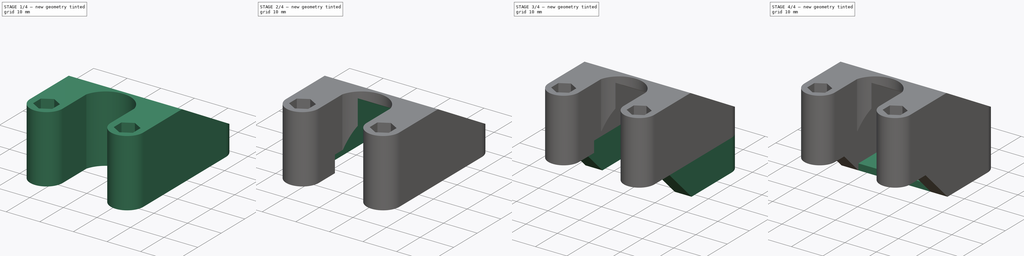
[diagram: build sequence overview — one tinted view per stage of 4, left to right]
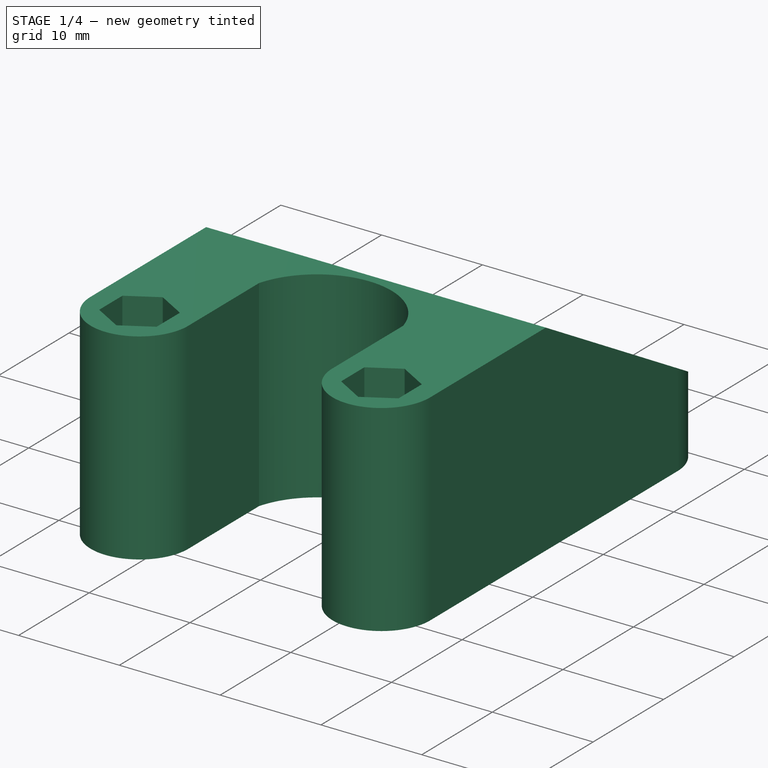
[diagram: stage 1 of 4 — iso view after this stage's code; geometry added in this stage tinted green]
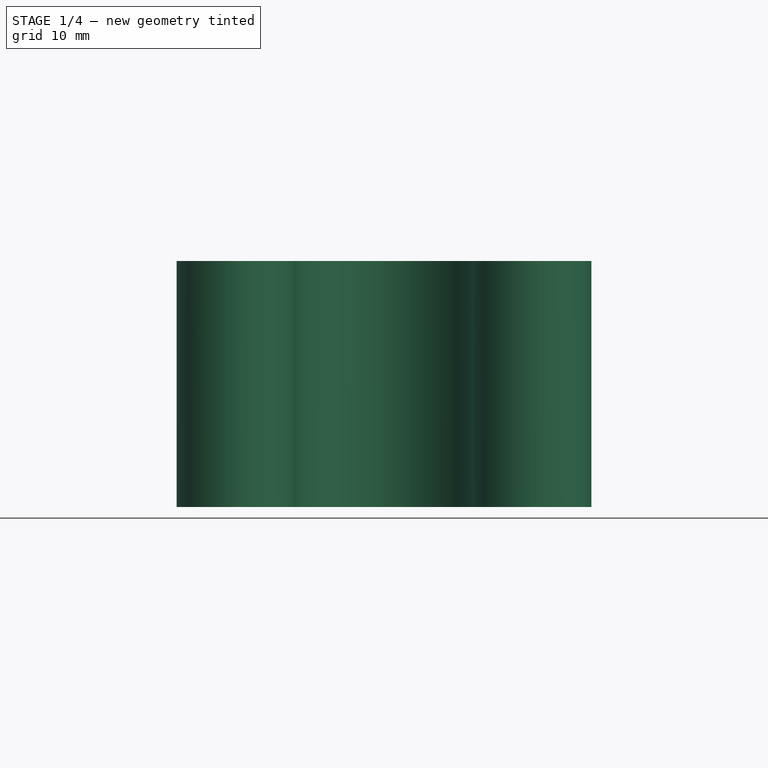
[diagram: stage 1 of 4 — front view after this stage's code; geometry added in this stage tinted green]
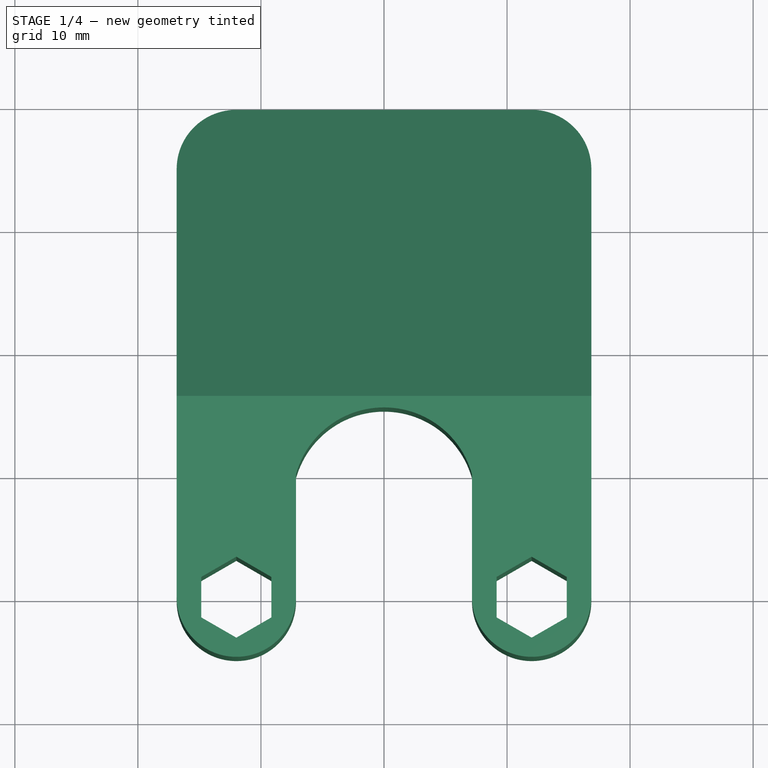
[diagram: stage 1 of 4 — top view after this stage's code; geometry added in this stage tinted green]
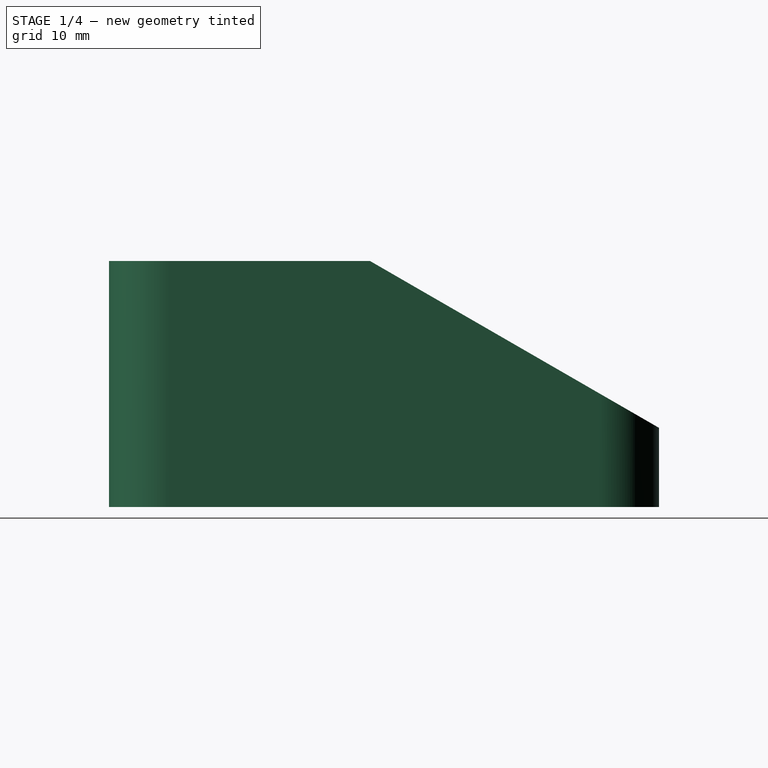
[diagram: stage 1 of 4 — right view after this stage's code; geometry added in this stage tinted green]
FCSTD DOCUMENT  (FreeCAD 0.20R29177 (Git))
Label: back_console
License: All rights reserved
LicenseURL: http://en.wikipedia.org/wiki/All_rights_reserved
objects: Sketcher::SketchObject×9, PartDesign::Pocket×6, PartDesign::Pad×3, PartDesign::CoordinateSystem×2, PartDesign::Plane×1, PartDesign::Chamfer×1, PartDesign::Body×1
note: 33 computed .brp shape members not serialized (recipe doc carries the construction recipe); baked Part::Feature solids carry a one-line shape summary decoded from their .brp

FEATURE [Sketcher::SketchObject] Sketch
  FullyConstrained = true
  MapMode = 5
  Support = -> [XY_Plane]
  sketch-geometry (24):
    g0: LineSegment StartX=-9.15 StartY=-1.64545 StartZ=0 EndX=-9.15 EndY=1.64545 EndZ=0
    g1: LineSegment StartX=-9.15 StartY=1.64545 StartZ=0 EndX=-12 EndY=3.2909 EndZ=0
    g2: LineSegment StartX=-12 StartY=3.2909 StartZ=0 EndX=-14.85 EndY=1.64545 EndZ=0
    g3: LineSegment StartX=-14.85 StartY=1.64545 StartZ=0 EndX=-14.85 EndY=-1.64545 EndZ=0
    g4: LineSegment StartX=-14.85 StartY=-1.64545 StartZ=0 EndX=-12 EndY=-3.2909 EndZ=0
    g5: LineSegment StartX=-12 StartY=-3.2909 StartZ=0 EndX=-9.15 EndY=-1.64545 EndZ=0
    g6: Circle CenterX=-12 CenterY=0 CenterZ=0 NormalX=0 NormalY=0 NormalZ=1 AngleXU=0 Radius=3.2909
    g7: LineSegment StartX=14.85 StartY=-1.64545 StartZ=0 EndX=14.85 EndY=1.64545 EndZ=0
    g8: LineSegment StartX=14.85 StartY=1.64545 StartZ=0 EndX=12 EndY=3.2909 EndZ=0
    g9: LineSegment StartX=12 StartY=3.2909 StartZ=0 EndX=9.15 EndY=1.64545 EndZ=0
    g10: LineSegment StartX=9.15 StartY=1.64545 StartZ=0 EndX=9.15 EndY=-1.64545 EndZ=0
    g11: LineSegment StartX=9.15 StartY=-1.64545 StartZ=0 EndX=12 EndY=-3.2909 EndZ=0
    g12: LineSegment StartX=12 StartY=-3.2909 StartZ=0 EndX=14.85 EndY=-1.64545 EndZ=0
    g13: Circle CenterX=12 CenterY=0 CenterZ=0 NormalX=0 NormalY=0 NormalZ=1 AngleXU=0 Radius=3.2909
    g14: ArcOfCircle CenterX=-12 CenterY=0 CenterZ=0 NormalX=0 NormalY=0 NormalZ=1 AngleXU=0 Radius=4.85 StartAngle=3.14159 EndAngle=6.28319
    g15: ArcOfCircle CenterX=12 CenterY=0 CenterZ=0 NormalX=0 NormalY=0 NormalZ=1 AngleXU=0 Radius=4.85 StartAngle=3.14159 EndAngle=6.28319
    g16: LineSegment StartX=-7.15 StartY=-1.2e-15 StartZ=0 EndX=-7.15 EndY=10 EndZ=0
    g17: LineSegment StartX=7.15 StartY=6e-16 StartZ=0 EndX=7.15 EndY=10 EndZ=0
    g18: LineSegment StartX=-16.85 StartY=0 StartZ=0 EndX=-16.85 EndY=35 EndZ=0
    g19: LineSegment StartX=16.85 StartY=0 StartZ=0 EndX=16.85 EndY=35 EndZ=0
    g20: ArcOfCircle CenterX=1e-16 CenterY=8 CenterZ=0 NormalX=0 NormalY=0 NormalZ=1 AngleXU=0 Radius=7.42445 StartAngle=0.272749 EndAngle=2.86884
    g21: LineSegment StartX=-12 StartY=39.85 StartZ=0 EndX=12 EndY=39.85 EndZ=0
    g22: ArcOfCircle CenterX=-12 CenterY=35 CenterZ=0 NormalX=0 NormalY=0 NormalZ=1 AngleXU=0 Radius=4.85 StartAngle=1.5708 EndAngle=3.14159
    g23: ArcOfCircle CenterX=12 CenterY=35 CenterZ=0 NormalX=0 NormalY=0 NormalZ=1 AngleXU=0 Radius=4.85 StartAngle=-5.42e-14 EndAngle=1.5708
  constraints (65):
    c: Coincident(g0,g1)
    c: Coincident(g1,g2)
    c: Coincident(g2,g3)
    c: Coincident(g3,g4)
    c: Coincident(g4,g5)
    c: Coincident(g5,g0)
    c: Equal(g0, g1-g5) x5
    c: PointOnObject(g0,g6)
    c: PointOnObject(g1,g6)
    c: PointOnObject(g2,g6)
    c: PointOnObject(g3,g6)
    c: PointOnObject(g4,g6)
    c: PointOnObject(g5,g6)
    c: PointOnObject(g6,g-1)
    c: Coincident(g7,g8)
    c: Coincident(g8,g9)
    c: Coincident(g9,g10)
    c: Coincident(g10,g11)
    c: Coincident(g11,g12)
    c: Coincident(g12,g7)
    c: Equal(g7, g8-g12) x5
    c: PointOnObject(g7,g13)
    c: PointOnObject(g8,g13)
    c: PointOnObject(g9,g13)
    c: PointOnObject(g10,g13)
    c: PointOnObject(g11,g13)
    c: PointOnObject(g12,g13)
    c: Vertical(g10)
    c: Vertical(g3)
    c: Equal(g3,g10)
    c: Symmetric(g6,g13,g-2)
    c: DistanceX(g2,g0) = 5.7
    c: DistanceX(g6,g13) = 24
    c: Coincident(g14,g6)
    c: PointOnObject(g14,g-1)
    c: Coincident(g15,g13)
    c: Coincident(g16,g14)
    c: Vertical(g16)
    c: Coincident(g17,g15)
    c: Vertical(g17)
    c: DistanceX(g0,g14) = 2
    c: Symmetric(g14,g15,g-2)
    c: DistanceY(g16,g16) = 10
    c: Coincident(g20,g16)
    c: Coincident(g20,g17)
    c: DistanceY(g-1,g20) = 8
    c: Equal(g17,g16)
    c: DistanceY(g19,g19) = 35
    c: Coincident(g22,g18)
    c: Vertical(g22,g21)
    c: Equal(g23,g22)
    c: Coincident(g22,g21)
    c: Coincident(g23,g21)
    c: Horizontal(g21)
    c: Vertical(g18)
    c: Coincident(g19,g23)
    c: Vertical(g19)
    c: Coincident(g15,g19)
    c: Coincident(g18,g14)
    c: PointOnObject(g14,g-1)
    c: PointOnObject(g15,g-1)
    c: Equal(g18,g19)
    c: DistanceX(g21,g21) = 24
    c: DistanceX(g22,g23) = 24
    c: Horizontal(g23,g19)
FEATURE [PartDesign::Pad] Pad
  Direction = (0,0,1)
  Length = 20
  Length2 = 10
  Profile = -> Sketch
  ReferenceAxis = -> Sketch [N_Axis]
  Type = 0
FEATURE [Sketcher::SketchObject] Sketch001
  ExternalGeometry = -> [Pad]
  FullyConstrained = true
  MapMode = 5
  Placement = pos=(16.85,0,0) rot=(0.57735,0.57735,0.57735;2.0944rad)
  Support = -> [Pad]
  sketch-geometry (3):
    g0: LineSegment StartX=7.69873 StartY=25 StartZ=0 EndX=51 EndY=25 EndZ=0
    g1: LineSegment StartX=51 StartY=25 StartZ=0 EndX=51 EndY=0 EndZ=0
    g2: LineSegment StartX=7.69873 StartY=25 StartZ=0 EndX=51 EndY=0 EndZ=0
  constraints (9):
    c: Horizontal(g0)
    c: Coincident(g1,g0)
    c: Vertical(g1)
    c: Coincident(g2,g0)
    c: Coincident(g2,g1)
    c: Angle(g2) = -0.523599
    c: PointOnObject(g1,g-1)
    c: DistanceX(g-1,g1) = 51
    c: DistanceY(g1,g1) = 25
FEATURE [PartDesign::Pocket] Pocket
  BaseFeature = -> Pad
  Direction = (-1,0,0)
  Length = 35
  Length2 = 5
  Profile = -> Sketch001
  ReferenceAxis = -> Sketch001 [N_Axis]
  Type = 0
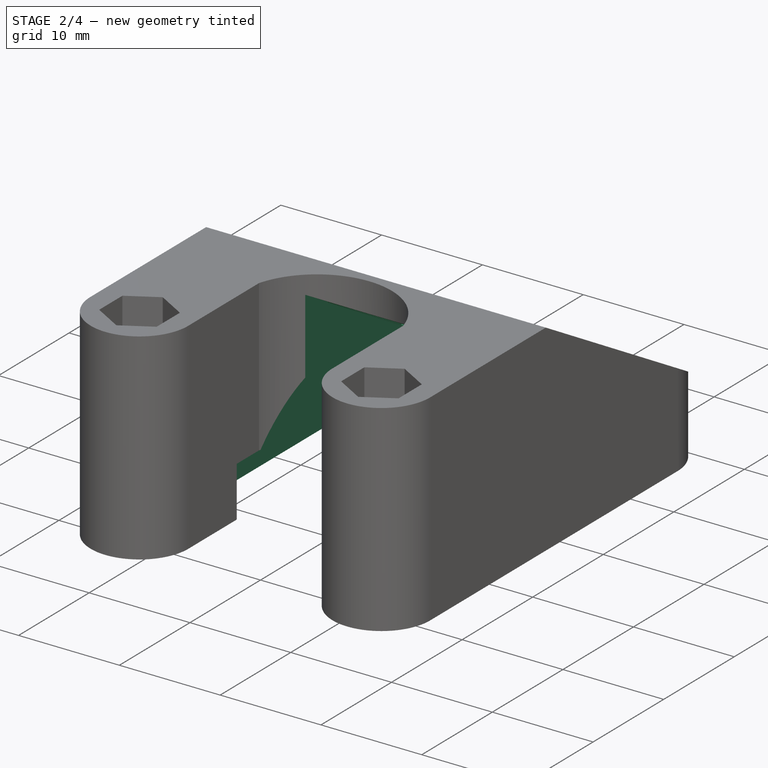
[diagram: stage 2 of 4 — iso view after this stage's code; geometry added in this stage tinted green]
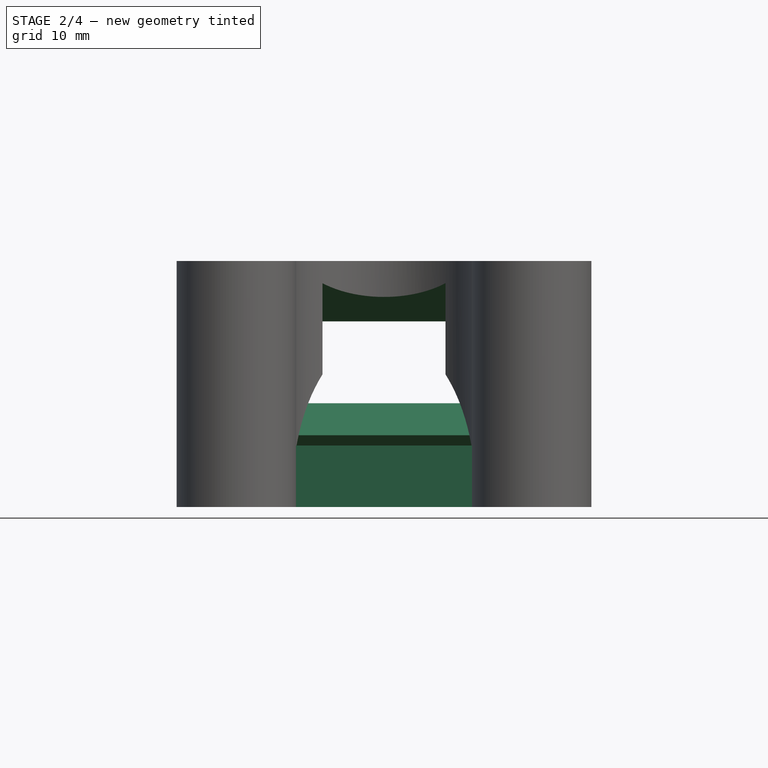
[diagram: stage 2 of 4 — front view after this stage's code; geometry added in this stage tinted green]
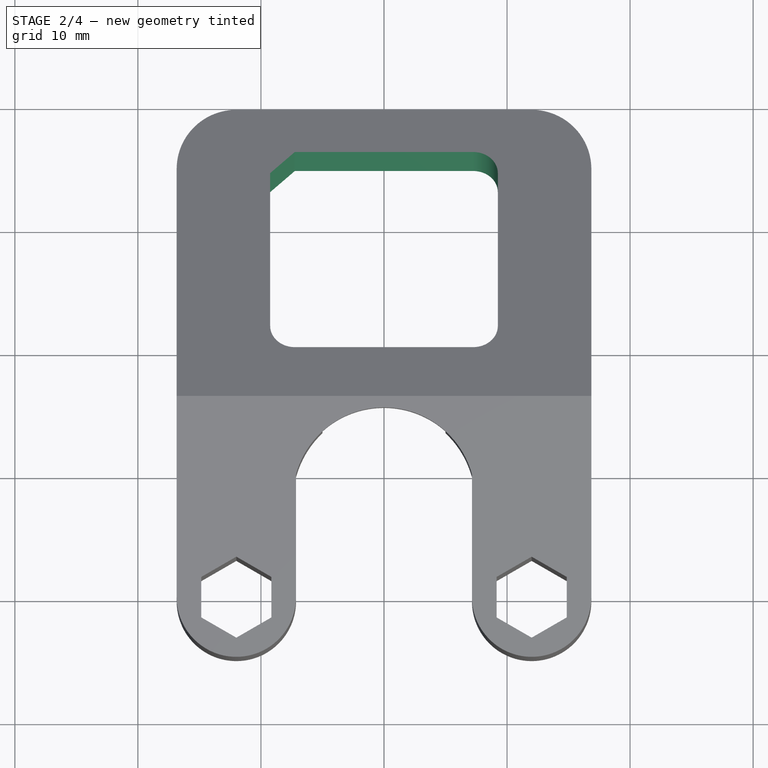
[diagram: stage 2 of 4 — top view after this stage's code; geometry added in this stage tinted green]
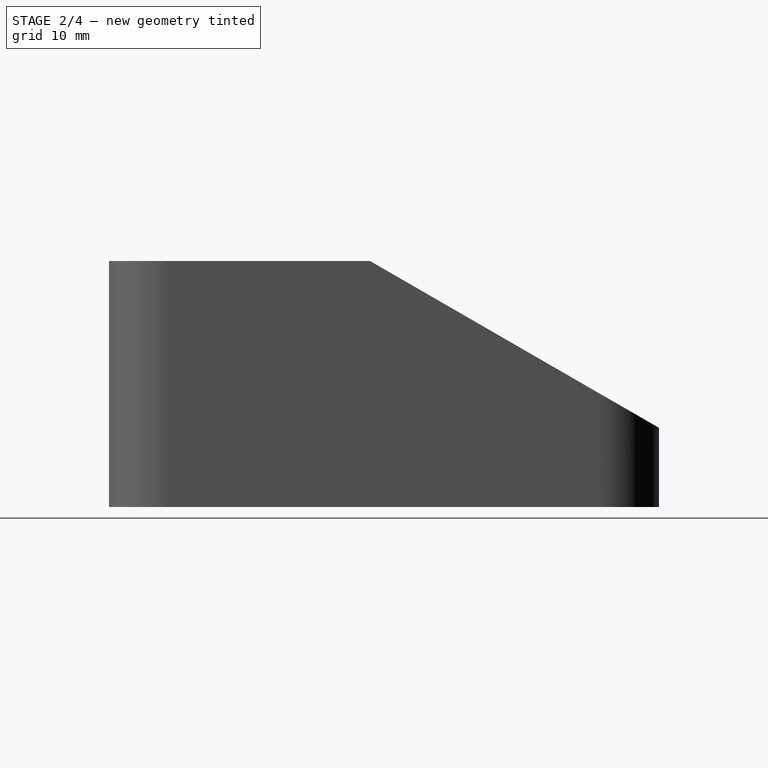
[diagram: stage 2 of 4 — right view after this stage's code; geometry added in this stage tinted green]
FEATURE [Sketcher::SketchObject] Sketch002
  ExternalGeometry = -> [Pocket]
  FullyConstrained = true
  MapMode = 5
  Placement = pos=(0,12.75,22.0836) rot=(-1,0,0;0.523599rad)
  Support = -> [Pocket]
  sketch-geometry (8):
    g0: LineSegment StartX=-7.25 StartY=27.2924 StartZ=0 EndX=7.25 EndY=27.2924 EndZ=0
    g1: LineSegment StartX=-7.25 StartY=8.79238 StartZ=0 EndX=7.25 EndY=8.79238 EndZ=0
    g2: LineSegment StartX=9.25 StartY=25.2924 StartZ=0 EndX=9.25 EndY=10.7924 EndZ=0
    g3: LineSegment StartX=-9.25 StartY=25.2924 StartZ=0 EndX=-9.25 EndY=10.7924 EndZ=0
    g4: LineSegment StartX=-9.25 StartY=25.2924 StartZ=0 EndX=-7.25 EndY=27.2924 EndZ=0
    g5: ArcOfCircle CenterX=7.25 CenterY=25.2924 CenterZ=0 NormalX=0 NormalY=0 NormalZ=1 AngleXU=0 Radius=2 StartAngle=9e-16 EndAngle=1.5708
    g6: ArcOfCircle CenterX=7.25 CenterY=10.7924 CenterZ=0 NormalX=0 NormalY=0 NormalZ=1 AngleXU=0 Radius=2 StartAngle=4.71239 EndAngle=6.28319
    g7: ArcOfCircle CenterX=-7.25 CenterY=10.7924 CenterZ=0 NormalX=0 NormalY=0 NormalZ=1 AngleXU=0 Radius=2 StartAngle=3.14159 EndAngle=4.71239
  constraints (24):
    c: Vertical(g2)
    c: Vertical(g3)
    c: Equal(g3,g2)
    c: Equal(g0,g1)
    c: Symmetric(g1,g1,g-2)
    c: Symmetric(g0,g0,g-2)
    c: DistanceY(g1,g2) = 2
    c: Symmetric(g3,g2,g-2)
    c: DistanceY(g1,g0) = 18.5
    c: DistanceX(g3,g2) = 18.5
    c: Coincident(g4,g3)
    c: Coincident(g4,g0)
    c: Angle(g4) = 0.785398
    c: Coincident(g5,g0)
    c: Coincident(g5,g2)
    c: Coincident(g6,g2)
    c: Coincident(g6,g1)
    c: Coincident(g7,g1)
    c: Coincident(g7,g3)
    c: Vertical(g7,g1)
    c: Horizontal(g3,g7)
    c: Vertical(g1,g6)
    c: Horizontal(g5,g2)
    c: DistanceY(g0,g-3) = 4
FEATURE [PartDesign::Pocket] Pocket001
  BaseFeature = -> Pocket
  Direction = (0,-0.5,-0.866025)
  Length = 25
  Length2 = 5
  Profile = -> Sketch002
  ReferenceAxis = -> Sketch002 [N_Axis]
  Type = 0
FEATURE [PartDesign::Plane] DatumPlane
  AttachmentOffset = pos=(0,1,-3) rot=(0,0,1;0rad)
  Length = 62.7406
  MapMode = 5
  Placement = pos=(0,12.116,18.9856) rot=(-1,0,0;0.523599rad)
  ResizeMode = 0
  Support = -> [Pocket001]
  Width = 93.9024
FEATURE [Sketcher::SketchObject] Sketch003
  ExternalGeometry = -> [Pocket001]
  FullyConstrained = true
  MapMode = 5
  Placement = pos=(0,12.116,18.9856) rot=(-1,0,0;0.523599rad)
  Support = -> [DatumPlane]
  sketch-geometry (8):
    g0: LineSegment StartX=-10.5 StartY=28.2924 StartZ=0 EndX=10.5 EndY=28.2924 EndZ=0
    g1: LineSegment StartX=10.5 StartY=28.2924 StartZ=0 EndX=10.5 EndY=5.29238 EndZ=0
    g2: LineSegment StartX=-10.5 StartY=5.29238 StartZ=0 EndX=-10.5 EndY=28.2924 EndZ=0
    g3: LineSegment StartX=-10.5 StartY=5.29238 StartZ=0 EndX=-5 EndY=5.29238 EndZ=0
    g4: LineSegment StartX=10.5 StartY=5.29238 StartZ=0 EndX=5 EndY=5.29238 EndZ=0
    g5: LineSegment StartX=-5 StartY=5.29238 StartZ=0 EndX=-5 EndY=-0.707615 EndZ=0
    g6: LineSegment StartX=-5 StartY=-0.707615 StartZ=0 EndX=5 EndY=-0.707615 EndZ=0
    g7: LineSegment StartX=5 StartY=-0.707615 StartZ=0 EndX=5 EndY=5.29238 EndZ=0
  constraints (22):
    c: Coincident(g0,g1)
    c: Coincident(g2,g0)
    c: Vertical(g1)
    c: Vertical(g2)
    c: Symmetric(g0,g0,g-2)
    c: DistanceX(g0,g0) = 21
    c: DistanceY(g1,g1) = 23
    c: Equal(g2,g1)
    c: DistanceY(g-5,g0) = 2
    c: Coincident(g3,g2)
    c: Horizontal(g3)
    c: Coincident(g4,g1)
    c: Coincident(g5,g3)
    c: Vertical(g5)
    c: Coincident(g6,g5)
    c: Horizontal(g6)
    c: Coincident(g7,g6)
    c: Coincident(g7,g4)
    c: Vertical(g7)
    c: DistanceX(g6,g6) = 10
    c: Symmetric(g3,g4,g-2)
    c: DistanceY(g7,g7) = 6
FEATURE [PartDesign::Pocket] Pocket002
  BaseFeature = -> Pocket001
  Direction = (0,-0.5,-0.866025)
  Length = 30
  Length2 = 5
  Profile = -> Sketch003
  ReferenceAxis = -> Sketch003 [N_Axis]
  Type = 0
FEATURE [Sketcher::SketchObject] Sketch004
  ExternalGeometry = -> [Pocket002]
  FullyConstrained = true
  MapMode = 5
  Placement = pos=(0,0,0) rot=(1,0,0;3.14159rad)
  Support = -> [Pocket002]
  sketch-geometry (4):
    g0: LineSegment StartX=-11.5 StartY=-6.85 StartZ=0 EndX=11.5 EndY=-6.85 EndZ=0
    g1: LineSegment StartX=11.5 StartY=-6.85 StartZ=0 EndX=11.5 EndY=-36.85 EndZ=0
    g2: LineSegment StartX=11.5 StartY=-36.85 StartZ=0 EndX=-11.5 EndY=-36.85 EndZ=0
    g3: LineSegment StartX=-11.5 StartY=-36.85 StartZ=0 EndX=-11.5 EndY=-6.85 EndZ=0
  constraints (11):
    c: Coincident(g0,g1)
    c: Coincident(g1,g2)
    c: Coincident(g2,g3)
    c: Coincident(g3,g0)
    c: Horizontal(g0)
    c: Vertical(g1)
    c: Vertical(g3)
    c: DistanceY(g-5,g1) = 3
    c: Symmetric(g2,g1,g-2)
    c: DistanceY(g1,g1) = 30
    c: DistanceX(g2,g2) = 23
FEATURE [PartDesign::Pocket] Pocket003
  BaseFeature = -> Pocket002
  Direction = (0,0,1)
  Length = 5
  Length2 = 5
  Profile = -> Sketch004
  ReferenceAxis = -> Sketch004 [N_Axis]
  Type = 0
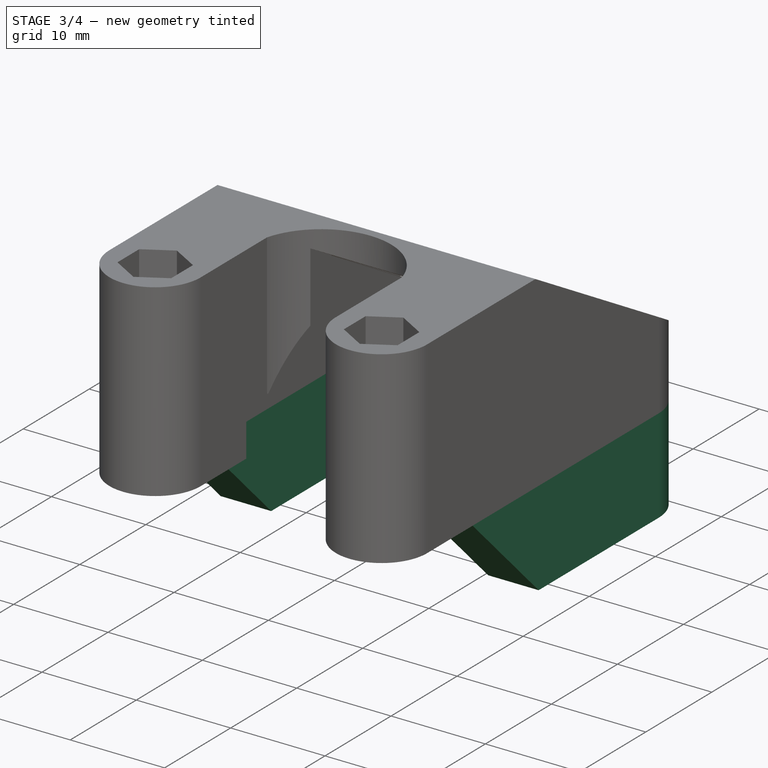
[diagram: stage 3 of 4 — iso view after this stage's code; geometry added in this stage tinted green]
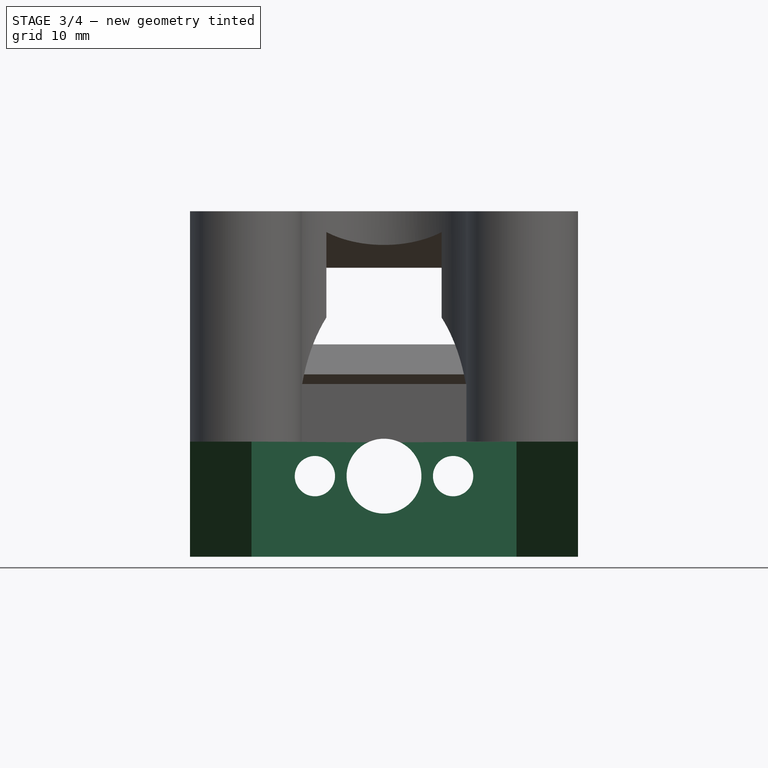
[diagram: stage 3 of 4 — front view after this stage's code; geometry added in this stage tinted green]
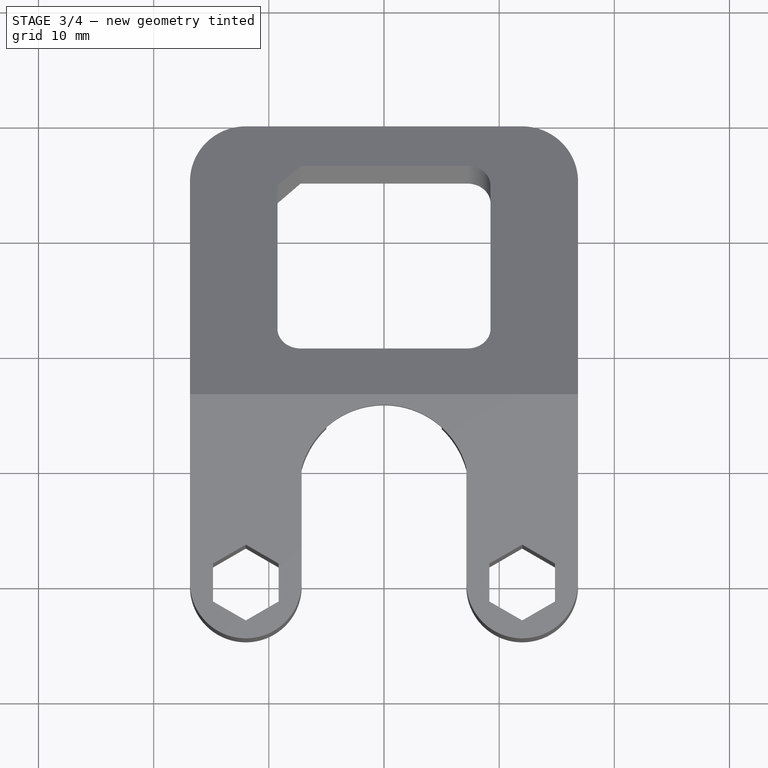
[diagram: stage 3 of 4 — top view after this stage's code; geometry added in this stage tinted green]
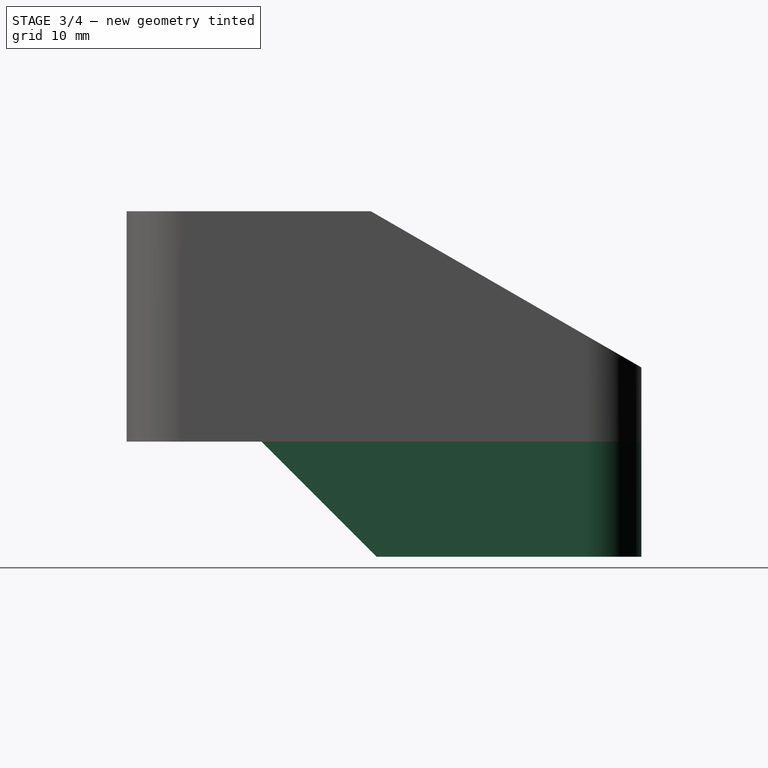
[diagram: stage 3 of 4 — right view after this stage's code; geometry added in this stage tinted green]
FEATURE [Sketcher::SketchObject] Sketch005
  ExternalGeometry = -> [Pocket003]
  FullyConstrained = true
  MapMode = 5
  Placement = pos=(0,0,0) rot=(1,0,0;3.14159rad)
  Support = -> [Pocket003]
  sketch-geometry (10):
    g0: LineSegment StartX=-11.5 StartY=-6.85 StartZ=0 EndX=-16.85 EndY=-6.85 EndZ=0
    g1: LineSegment StartX=-16.85 StartY=-6.85 StartZ=0 EndX=-16.85 EndY=-35 EndZ=0
    g2: LineSegment StartX=11.5 StartY=-6.85 StartZ=0 EndX=16.85 EndY=-6.85 EndZ=0
    g3: LineSegment StartX=16.85 StartY=-6.85 StartZ=0 EndX=16.85 EndY=-35 EndZ=0
    g4: LineSegment StartX=-12 StartY=-39.85 StartZ=0 EndX=12 EndY=-39.85 EndZ=0
    g5: LineSegment StartX=-11.5 StartY=-6.85 StartZ=0 EndX=-11.5 EndY=-36.85 EndZ=0
    g6: LineSegment StartX=-11.5 StartY=-36.85 StartZ=0 EndX=11.5 EndY=-36.85 EndZ=0
    g7: LineSegment StartX=11.5 StartY=-36.85 StartZ=0 EndX=11.5 EndY=-6.85 EndZ=0
    g8: ArcOfCircle CenterX=12 CenterY=-35 CenterZ=0 NormalX=0 NormalY=0 NormalZ=1 AngleXU=0 Radius=4.85 StartAngle=4.71239 EndAngle=6.28319
    g9: ArcOfCircle CenterX=-12 CenterY=-35 CenterZ=0 NormalX=0 NormalY=0 NormalZ=1 AngleXU=0 Radius=4.85 StartAngle=3.14159 EndAngle=4.71239
  constraints (24):
    c: Coincident(g-7,g0)
    c: PointOnObject(g0,g-5)
    c: Horizontal(g0)
    c: Coincident(g0,g1)
    c: Coincident(g1,g-5)
    c: Coincident(g-6,g2)
    c: PointOnObject(g2,g-4)
    c: Horizontal(g2)
    c: Coincident(g2,g3)
    c: Coincident(g3,g-4)
    c: Coincident(g4,g-3)
    c: Coincident(g4,g-3)
    c: Coincident(g0,g5)
    c: Coincident(g5,g-8)
    c: Coincident(g5,g6)
    c: Coincident(g6,g-8)
    c: Coincident(g6,g7)
    c: Coincident(g7,g2)
    c: Coincident(g8,g3)
    c: Coincident(g8,g4)
    c: Coincident(g9,g1)
    c: Coincident(g9,g4)
    c: Vertical(g9,g4)
    c: Vertical(g4,g8)
FEATURE [PartDesign::Pad] Pad001
  BaseFeature = -> Pocket003
  Direction = (0,0,-1)
  Length = 10
  Length2 = 10
  Profile = -> Sketch005
  ReferenceAxis = -> Sketch005 [N_Axis]
  Type = 0
FEATURE [Sketcher::SketchObject] Sketch006
  ExternalGeometry = -> [Pad001]
  FullyConstrained = true
  MapMode = 5
  Placement = pos=(16.85,0,0) rot=(0.57735,0.57735,0.57735;2.0944rad)
  Support = -> [Pad001]
  sketch-geometry (3):
    g0: LineSegment StartX=6.85 StartY=0 StartZ=0 EndX=16.85 EndY=-10 EndZ=0
    g1: LineSegment StartX=6.85 StartY=0 StartZ=0 EndX=6.85 EndY=-10 EndZ=0
    g2: LineSegment StartX=16.85 StartY=-10 StartZ=0 EndX=6.85 EndY=-10 EndZ=0
  constraints (7):
    c: Coincident(g0,g-4)
    c: PointOnObject(g0,g-3)
    c: Coincident(g1,g0)
    c: Coincident(g1,g-4)
    c: Coincident(g2,g0)
    c: Coincident(g2,g1)
    c: Angle(g0) = -0.785398
FEATURE [PartDesign::Pocket] Pocket004
  BaseFeature = -> Pad001
  Direction = (-1,0,0)
  Length = 35
  Length2 = 5
  Profile = -> Sketch006
  ReferenceAxis = -> Sketch006 [N_Axis]
  Type = 0
FEATURE [Sketcher::SketchObject] Sketch007
  ExternalGeometry = -> [Pocket004]
  FullyConstrained = true
  MapMode = 5
  Placement = pos=(0,39.85,0) rot=(0,0.707107,0.707107;3.14159rad)
  Support = -> [Pocket004]
  sketch-geometry (3):
    g0: Circle CenterX=0 CenterY=-3 CenterZ=0 NormalX=0 NormalY=0 NormalZ=1 AngleXU=0 Radius=3.25
    g1: Circle CenterX=6 CenterY=-3 CenterZ=0 NormalX=0 NormalY=0 NormalZ=1 AngleXU=0 Radius=1.75
    g2: Circle CenterX=-6 CenterY=-3 CenterZ=0 NormalX=0 NormalY=0 NormalZ=1 AngleXU=0 Radius=1.75
  constraints (8):
    c: PointOnObject(g0,g-2)
    c: DistanceY(g-3,g0) = 7
    c: Diameter(g0) = 6.5
    c: Horizontal(g0,g1)
    c: Equal(g1,g2)
    c: Diameter(g1) = 3.5
    c: Symmetric(g2,g1,g-2)
    c: DistanceX(g2,g1) = 12
FEATURE [PartDesign::Pocket] Pocket005
  BaseFeature = -> Pocket004
  Direction = (0,-1,2e-16)
  Length = 5
  Length2 = 5
  Profile = -> Sketch007
  ReferenceAxis = -> Sketch007 [N_Axis]
  Type = 0
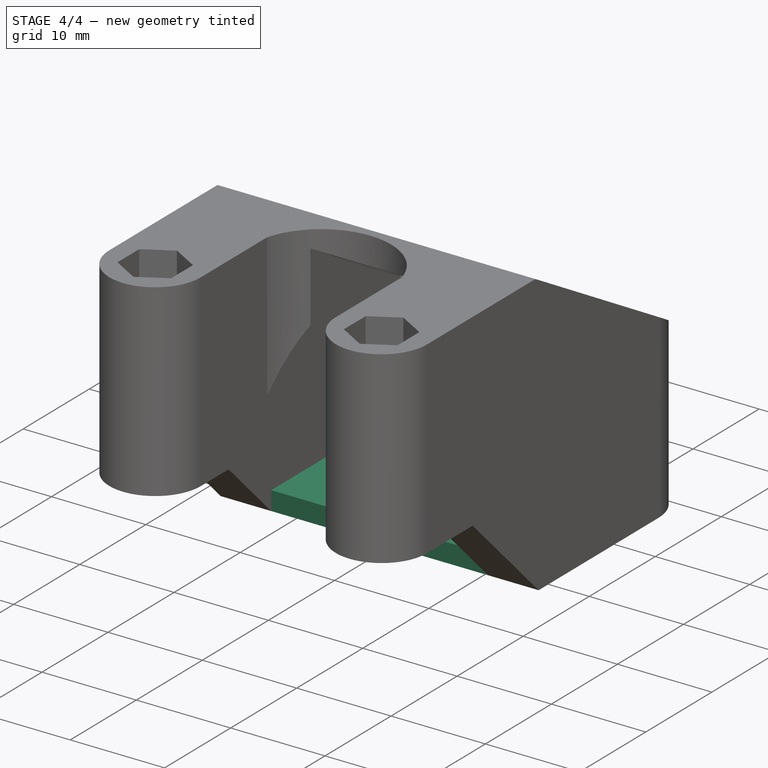
[diagram: stage 4 of 4 — iso view after this stage's code; geometry added in this stage tinted green]
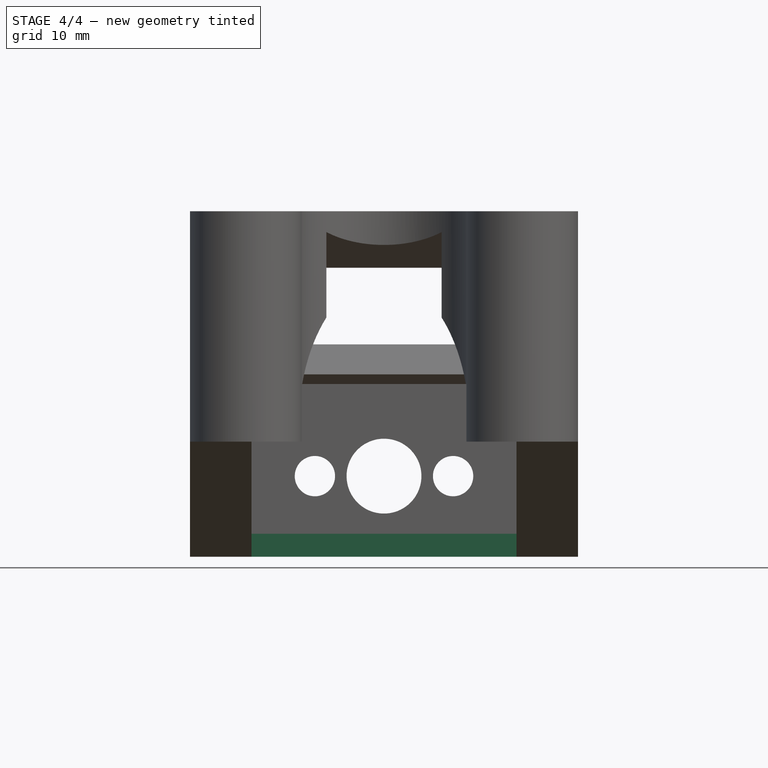
[diagram: stage 4 of 4 — front view after this stage's code; geometry added in this stage tinted green]
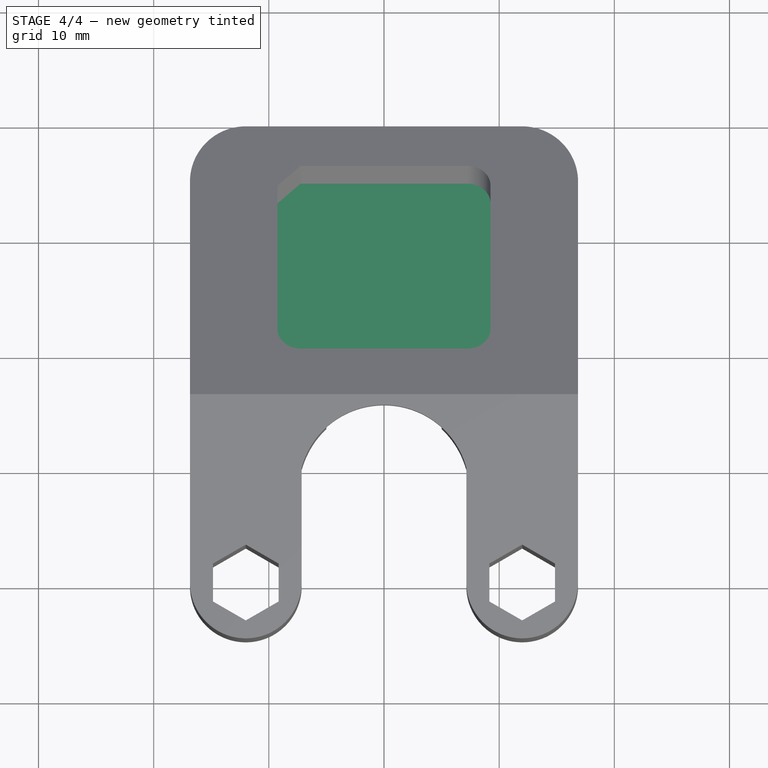
[diagram: stage 4 of 4 — top view after this stage's code; geometry added in this stage tinted green]
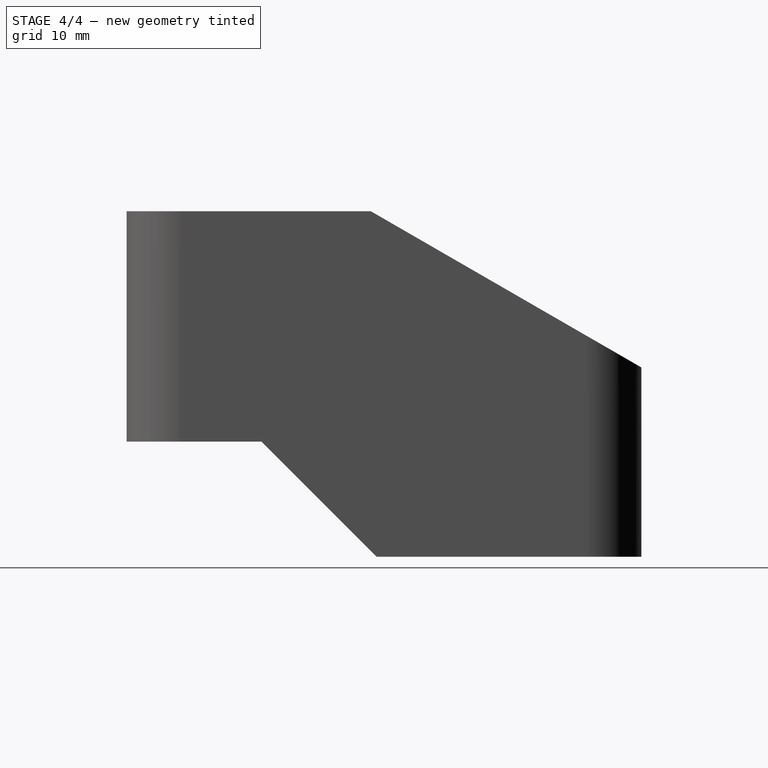
[diagram: stage 4 of 4 — right view after this stage's code; geometry added in this stage tinted green]
FEATURE [PartDesign::CoordinateSystem] LCS_1
  AttacherType = Attacher::AttachEngine3D
  AttachmentOffset = pos=(-7,26,0) rot=(0,0,1;0rad)
  MapMode = 5
  Placement = pos=(-7,34.6327,5.98557) rot=(-1,0,0;0.523599rad)
  Support = -> [DatumPlane]
FEATURE [Sketcher::SketchObject] Sketch008
  ExternalGeometry = -> [Pocket005]
  FullyConstrained = true
  MapMode = 5
  Placement = pos=(0,0,-10) rot=(1,0,0;3.14159rad)
  Support = -> [Pocket005]
  sketch-geometry (6):
    g0: LineSegment StartX=-16.85 StartY=-16.85 StartZ=0 EndX=16.85 EndY=-16.85 EndZ=0
    g1: LineSegment StartX=-16.85 StartY=-16.85 StartZ=0 EndX=-16.85 EndY=-35 EndZ=0
    g2: LineSegment StartX=16.85 StartY=-16.85 StartZ=0 EndX=16.85 EndY=-35 EndZ=0
    g3: LineSegment StartX=12 StartY=-39.85 StartZ=0 EndX=-12 EndY=-39.85 EndZ=0
    g4: ArcOfCircle CenterX=12 CenterY=-35 CenterZ=0 NormalX=0 NormalY=0 NormalZ=1 AngleXU=0 Radius=4.85 StartAngle=4.71239 EndAngle=6.28319
    g5: ArcOfCircle CenterX=-12 CenterY=-35 CenterZ=0 NormalX=0 NormalY=0 NormalZ=1 AngleXU=0 Radius=4.85 StartAngle=3.14159 EndAngle=4.71239
  constraints (14):
    c: Coincident(g1,g0)
    c: Coincident(g4,g2)
    c: Coincident(g4,g3)
    c: Coincident(g5,g1)
    c: Coincident(g5,g3)
    c: Vertical(g4,g3)
    c: Vertical(g5,g3)
    c: Coincident(g0,g-3)
    c: Coincident(g2,g0)
    c: Coincident(g2,g-3)
    c: Coincident(g3,g-4)
    c: Coincident(g3,g-4)
    c: Coincident(g1,g-5)
    c: Coincident(g0,g-5)
FEATURE [PartDesign::Chamfer] Chamfer
  Angle = 45
  Base = -> Pocket005 [Edge36,Edge35]
  BaseFeature = -> Pocket005
  ChamferType = 0
  FlipDirection = false
  Size = 0.9
  Size2 = 1
  SupportTransform = false
  UseAllEdges = false
FEATURE [PartDesign::Pad] Pad002
  BaseFeature = -> Chamfer
  Direction = (0,0,-1)
  Length = 2
  Length2 = 10
  Profile = -> Sketch008
  ReferenceAxis = -> Sketch008 [N_Axis]
  Reversed = true
  Type = 0
FEATURE [PartDesign::CoordinateSystem] LCS_2
  AttacherType = Attacher::AttachEngine3D
  AttachmentOffset = pos=(16,-17,0) rot=(0,0,1;0rad)
  MapMode = 5
  Placement = pos=(16,17,-10) rot=(1,0,0;3.14159rad)
  Support = -> [Pad002]
FEATURE [PartDesign::Body] Body
  Group = -> [Sketch,Pad,Sketch001,Pocket,Sketch002,Pocket001,DatumPlane,Sketch003,Pocket002,Sketch004,Pocket003,Sketch005,Pad001,Sketch006,Pocket004,Sketch007,Pocket005,LCS_1,LCS_2,Sketch008,Chamfer,Pad002]
  Origin = -> Origin
  Tip = -> Pad002
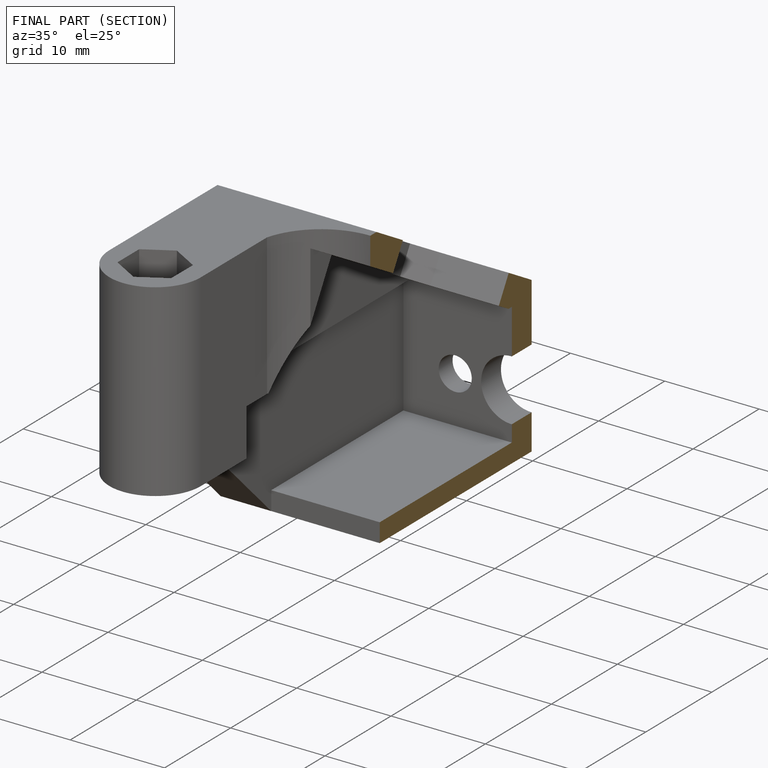
[diagram: finished part — half-section view (interior)]
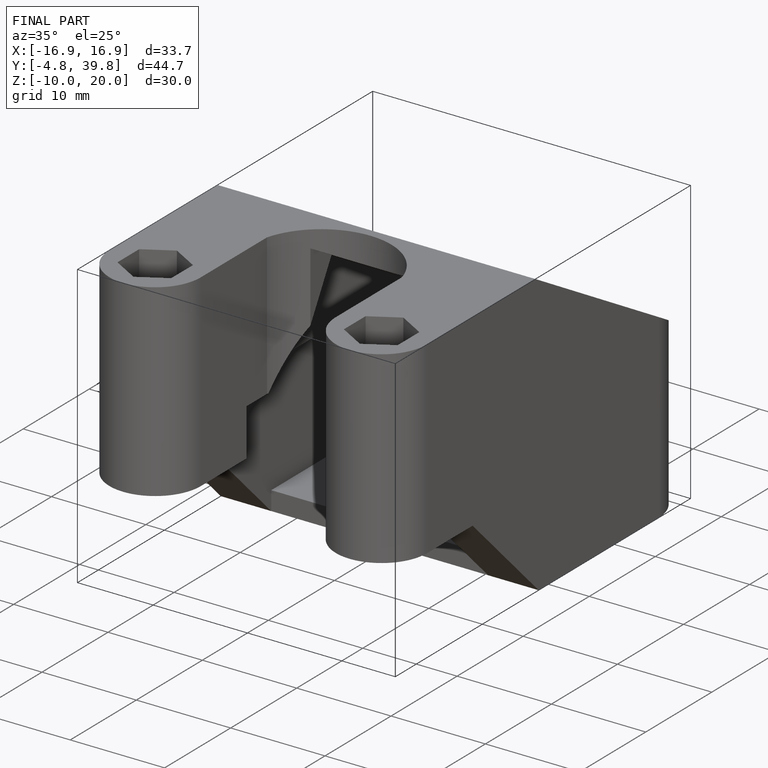
[diagram: finished part — iso view with bounding-box wireframe]
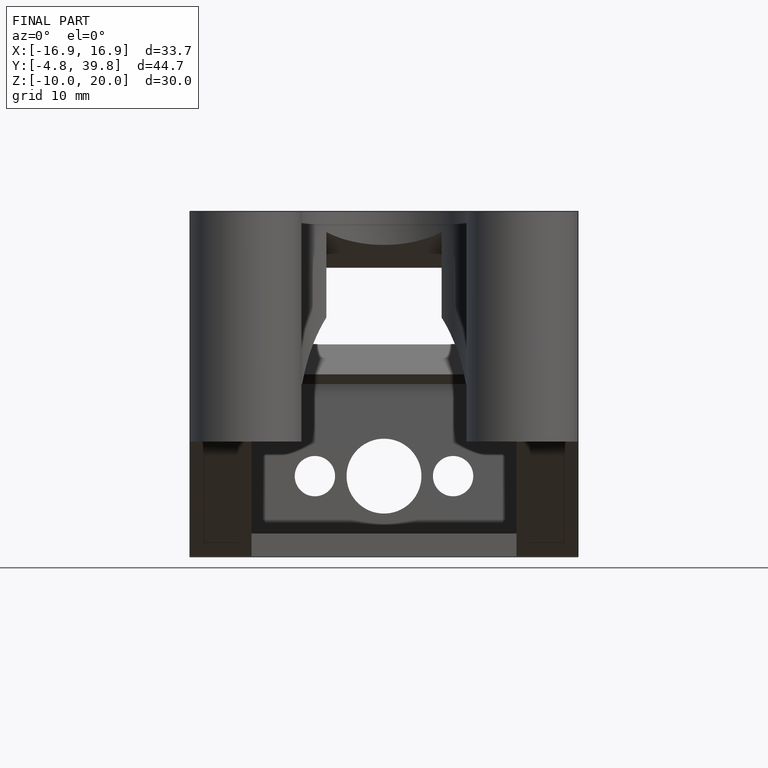
[diagram: finished part — front view with bounding-box wireframe]
